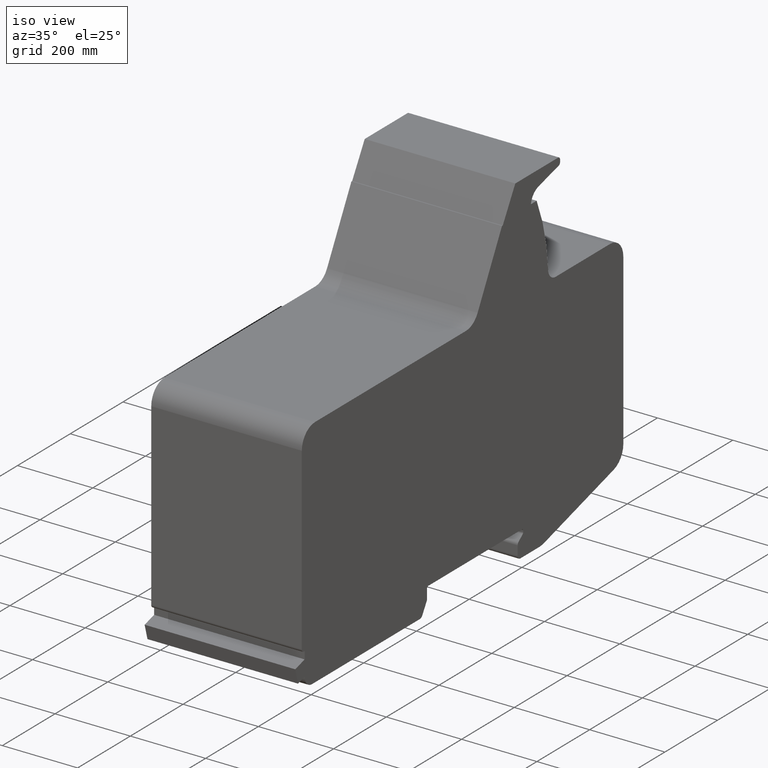
[diagram: clean part render]
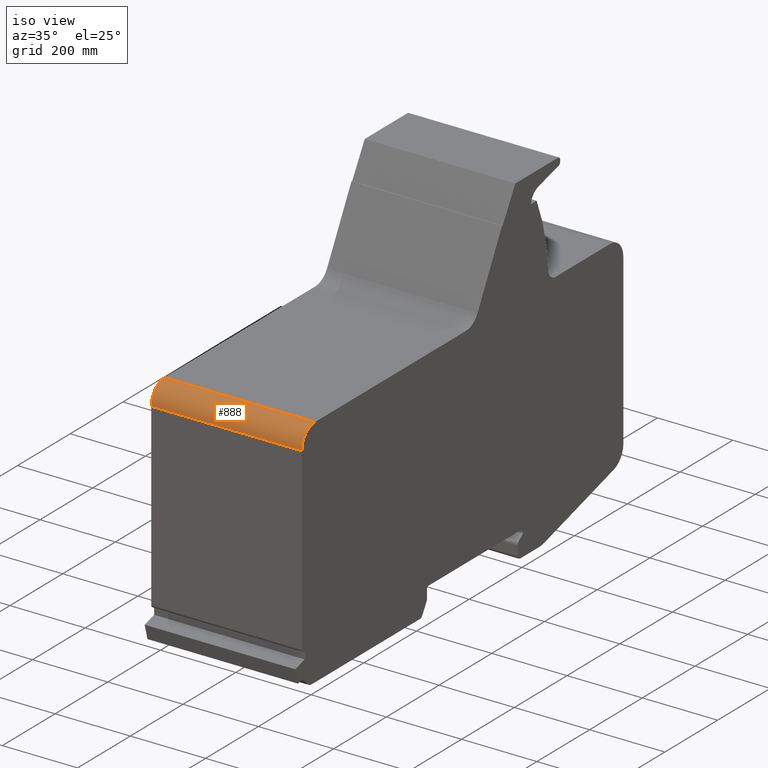
[diagram: same view with one face highlighted and labeled with its STEP entity id]
A machine part, iso view. The second image highlights one B-rep face of the part: STEP entity #888.
In plain terms, the highlighted cylindrical surface (edge-blend (fillet) strip) has radius 50 mm, axis along (1, 0, 0).
Its self-contained STEP definition (entity closure, byte-faithful):
#830=CARTESIAN_POINT('',(400.0,-835.00000000000011,507.50000000000023));
#831=VERTEX_POINT('',#830);
#838=CARTESIAN_POINT('',(0.0,-835.00000000000011,507.50000000000023));
#839=VERTEX_POINT('',#838);
#840=CARTESIAN_POINT('',(0.0,-835.00000000000011,507.50000000000023));
#841=DIRECTION('',(1.0,0.0,0.0));
#842=VECTOR('',#841,400.0);
#843=LINE('',#840,#842);
#844=EDGE_CURVE('',#839,#831,#843,.T.);
#856=CARTESIAN_POINT('',(0.0,-785.00000000000023,507.50000000000023));
#857=DIRECTION('',(1.0,0.0,0.0));
#858=DIRECTION('',(0.0,-0.707106781186546,0.707106781186549));
#859=AXIS2_PLACEMENT_3D('',#856,#857,#858);
#860=CYLINDRICAL_SURFACE('',#859,49.999999999999808);
#861=CARTESIAN_POINT('',(400.0,-785.00000000000011,557.5));
#862=VERTEX_POINT('',#861);
#863=CARTESIAN_POINT('',(400.0,-785.00000000000023,507.50000000000023));
#864=DIRECTION('',(-1.0,0.0,0.0));
#865=DIRECTION('',(0.0,-0.707106781186546,0.707106781186549));
#866=AXIS2_PLACEMENT_3D('',#863,#864,#865);
#867=CIRCLE('',#866,49.999999999999808);
#868=EDGE_CURVE('',#831,#862,#867,.T.);
#869=ORIENTED_EDGE('',*,*,#868,.T.);
#870=CARTESIAN_POINT('',(0.0,-785.00000000000011,557.5));
#871=VERTEX_POINT('',#870);
#872=CARTESIAN_POINT('',(0.0,-785.00000000000011,557.5));
#873=DIRECTION('',(1.0,0.0,0.0));
#874=VECTOR('',#873,400.0);
#875=LINE('',#872,#874);
#876=EDGE_CURVE('',#871,#862,#875,.T.);
#877=ORIENTED_EDGE('',*,*,#876,.F.);
#878=CARTESIAN_POINT('',(0.0,-785.00000000000023,507.50000000000023));
#879=DIRECTION('',(1.0,0.0,0.0));
#880=DIRECTION('',(0.0,-0.707106781186546,0.707106781186549));
#881=AXIS2_PLACEMENT_3D('',#878,#879,#880);
#882=CIRCLE('',#881,49.999999999999808);
#883=EDGE_CURVE('',#871,#839,#882,.T.);
#884=ORIENTED_EDGE('',*,*,#883,.T.);
#885=ORIENTED_EDGE('',*,*,#844,.T.);
#886=EDGE_LOOP('',(#869,#877,#884,#885));
#887=FACE_OUTER_BOUND('',#886,.T.);
#888=ADVANCED_FACE('',(#887),#860,.T.);